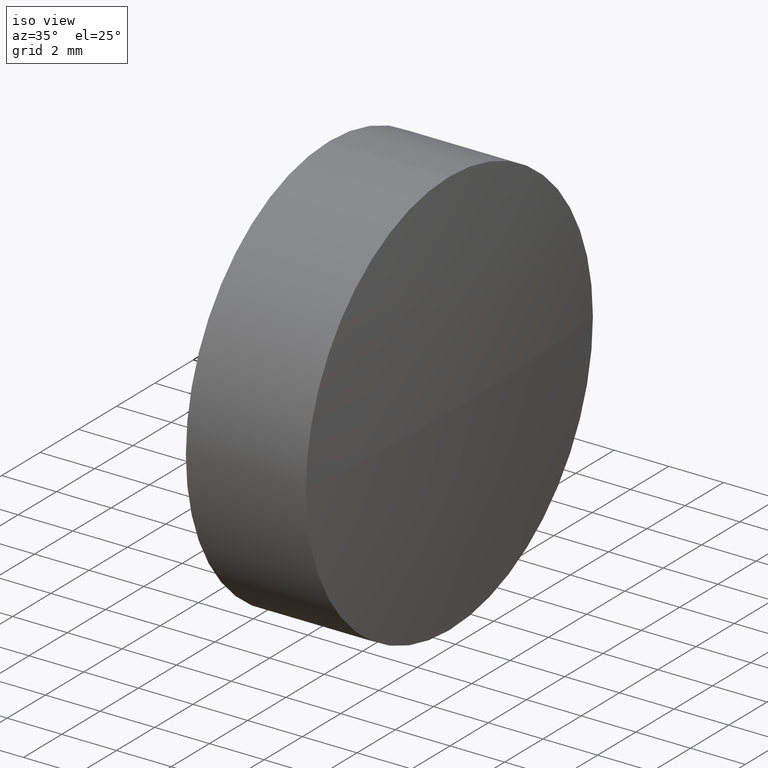
[diagram: clean part render]
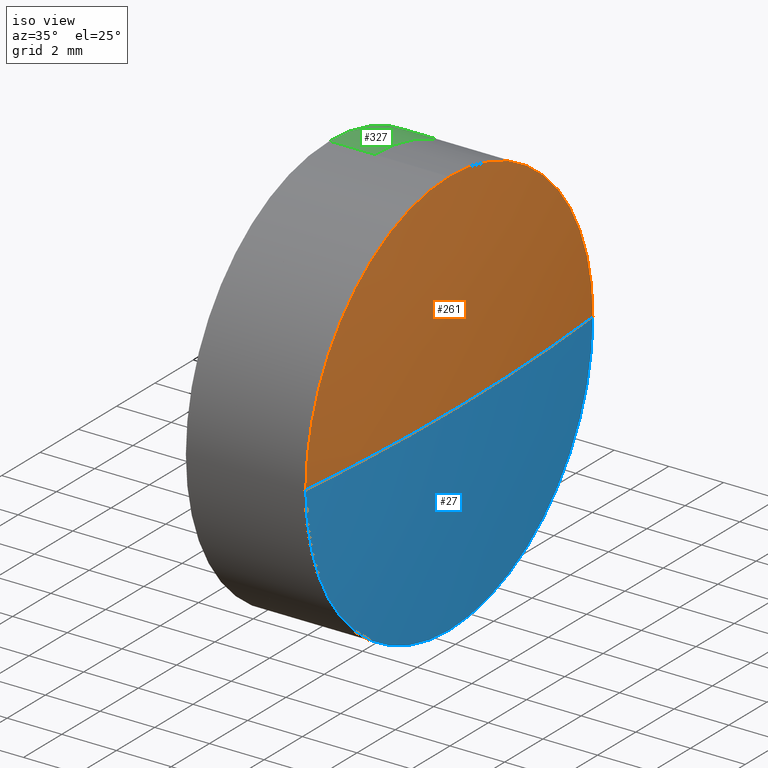
[diagram: same view with three faces highlighted in distinct colors, each labeled with its STEP entity id]
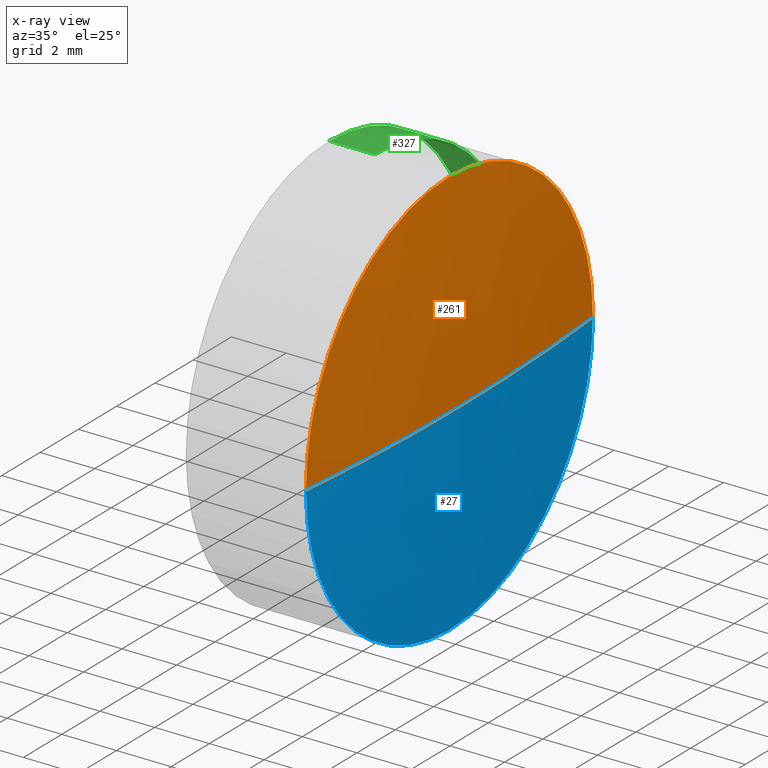
[diagram: x-ray of the same camera — body ghosted, the three highlighted faces saturated]
A machine part, iso view with three faces highlighted in distinct colors.
The next image is the same camera in x-ray (body ghosted, the three faces saturated) — at least one of them is partly hidden behind the body in this view.
Their STEP definitions:

[orange] entity #261 — the highlighted spherical surface has radius 76.36 mm.
#15 = SPHERICAL_SURFACE ( 'NONE', #78, 76.35999999999999943 ) ;
#45 = CARTESIAN_POINT ( 'NONE',  ( -84.31590303918355289, 10.13402828794794708, 7.500000000000000000 ) ) ;
#52 = EDGE_CURVE ( 'NONE', #352, #197, #414, .T. ) ;
#73 = DIRECTION ( 'NONE',  ( -1.000000000000000000, -0.000000000000000000, -0.000000000000000000 ) ) ;
#78 = AXIS2_PLACEMENT_3D ( 'NONE', #325, #395, #332 ) ;
#86 = AXIS2_PLACEMENT_3D ( 'NONE', #186, #253, #326 ) ;
#98 = EDGE_CURVE ( 'NONE', #197, #207, #232, .T. ) ;
#107 = DIRECTION ( 'NONE',  ( -0.000000000000000000, 0.000000000000000000, 1.000000000000000000 ) ) ;
#118 = VERTEX_POINT ( 'NONE', #432 ) ;
#123 = DIRECTION ( 'NONE',  ( 0.000000000000000000, 1.224646799147353207E-16, -1.000000000000000000 ) ) ;
#143 = CARTESIAN_POINT ( 'NONE',  ( -160.3066893227850755, 10.13402828794794708, 0.000000000000000000 ) ) ;
#146 = EDGE_CURVE ( 'NONE', #118, #352, #394, .T. ) ;
#181 = ORIENTED_EDGE ( 'NONE', *, *, #98, .F. ) ;
#185 = CARTESIAN_POINT ( 'NONE',  ( -84.31590303918355289, 17.63402828794788491, 0.000000000000000000 ) ) ;
#186 = CARTESIAN_POINT ( 'NONE',  ( -84.31590303918355289, 10.13402828794794708, 0.000000000000000000 ) ) ;
#197 = VERTEX_POINT ( 'NONE', #45 ) ;
#201 = AXIS2_PLACEMENT_3D ( 'NONE', #260, #123, #360 ) ;
#207 = VERTEX_POINT ( 'NONE', #185 ) ;
#217 = CIRCLE ( 'NONE', #316, 76.35999999999999943 ) ;
#232 = CIRCLE ( 'NONE', #365, 7.500000000000000000 ) ;
#253 = DIRECTION ( 'NONE',  ( -1.000000000000000000, -0.000000000000000000, -0.000000000000000000 ) ) ;
#260 = CARTESIAN_POINT ( 'NONE',  ( -160.3066893227850755, 10.13402828794794708, 0.000000000000000000 ) ) ;
#261 = ADVANCED_FACE ( 'NONE', ( #389 ), #15, .T. ) ;
#270 = ORIENTED_EDGE ( 'NONE', *, *, #359, .T. ) ;
#280 = ORIENTED_EDGE ( 'NONE', *, *, #146, .F. ) ;
#316 = AXIS2_PLACEMENT_3D ( 'NONE', #143, #107, #410 ) ;
#325 = CARTESIAN_POINT ( 'NONE',  ( -160.3066893227850755, 10.13402828794794708, 0.000000000000000000 ) ) ;
#326 = DIRECTION ( 'NONE',  ( 0.000000000000000000, 0.000000000000000000, 1.000000000000000000 ) ) ;
#332 = DIRECTION ( 'NONE',  ( 0.000000000000000000, 1.000000000000000000, 0.000000000000000000 ) ) ;
#344 = CARTESIAN_POINT ( 'NONE',  ( -84.31590303918355289, 2.634028287948008806, -9.184850993605071031E-16 ) ) ;
#352 = VERTEX_POINT ( 'NONE', #344 ) ;
#359 = EDGE_CURVE ( 'NONE', #118, #207, #217, .T. ) ;
#360 = DIRECTION ( 'NONE',  ( 0.000000000000000000, 1.000000000000000000, 1.224646799147353207E-16 ) ) ;
#365 = AXIS2_PLACEMENT_3D ( 'NONE', #383, #73, #418 ) ;
#383 = CARTESIAN_POINT ( 'NONE',  ( -84.31590303918355289, 10.13402828794794708, 0.000000000000000000 ) ) ;
#389 = FACE_OUTER_BOUND ( 'NONE', #426, .T. ) ;
#394 = CIRCLE ( 'NONE', #201, 76.35999999999999943 ) ;
#395 = DIRECTION ( 'NONE',  ( -0.000000000000000000, 0.000000000000000000, -1.000000000000000000 ) ) ;
#404 = ORIENTED_EDGE ( 'NONE', *, *, #52, .F. ) ;
#410 = DIRECTION ( 'NONE',  ( 1.000000000000000000, 0.000000000000000000, 0.000000000000000000 ) ) ;
#414 = CIRCLE ( 'NONE', #86, 7.500000000000000000 ) ;
#418 = DIRECTION ( 'NONE',  ( 0.000000000000000000, 0.000000000000000000, 1.000000000000000000 ) ) ;
#426 = EDGE_LOOP ( 'NONE', ( #280, #270, #181, #404 ) ) ;
#432 = CARTESIAN_POINT ( 'NONE',  ( -83.94668932278507611, 10.13402828794795241, 0.000000000000000000 ) ) ;

[blue] entity #27 — the highlighted spherical surface has radius 76.36 mm.
#3 = DIRECTION ( 'NONE',  ( 0.000000000000000000, 0.000000000000000000, 1.000000000000000000 ) ) ;
#17 = SPHERICAL_SURFACE ( 'NONE', #340, 76.35999999999999943 ) ;
#27 = ADVANCED_FACE ( 'NONE', ( #370 ), #17, .T. ) ;
#104 = AXIS2_PLACEMENT_3D ( 'NONE', #178, #319, #3 ) ;
#107 = DIRECTION ( 'NONE',  ( -0.000000000000000000, 0.000000000000000000, 1.000000000000000000 ) ) ;
#112 = EDGE_CURVE ( 'NONE', #131, #352, #258, .T. ) ;
#118 = VERTEX_POINT ( 'NONE', #432 ) ;
#123 = DIRECTION ( 'NONE',  ( 0.000000000000000000, 1.224646799147353207E-16, -1.000000000000000000 ) ) ;
#131 = VERTEX_POINT ( 'NONE', #202 ) ;
#142 = ORIENTED_EDGE ( 'NONE', *, *, #359, .F. ) ;
#143 = CARTESIAN_POINT ( 'NONE',  ( -160.3066893227850755, 10.13402828794794708, 0.000000000000000000 ) ) ;
#146 = EDGE_CURVE ( 'NONE', #118, #352, #394, .T. ) ;
#155 = DIRECTION ( 'NONE',  ( -1.000000000000000000, -0.000000000000000000, -0.000000000000000000 ) ) ;
#158 = DIRECTION ( 'NONE',  ( -0.000000000000000000, 0.000000000000000000, -1.000000000000000000 ) ) ;
#178 = CARTESIAN_POINT ( 'NONE',  ( -84.31590303918355289, 10.13402828794794708, 0.000000000000000000 ) ) ;
#185 = CARTESIAN_POINT ( 'NONE',  ( -84.31590303918355289, 17.63402828794788491, 0.000000000000000000 ) ) ;
#201 = AXIS2_PLACEMENT_3D ( 'NONE', #260, #123, #360 ) ;
#202 = CARTESIAN_POINT ( 'NONE',  ( -84.31590303918355289, 10.13402828794794885, -7.500000000000000000 ) ) ;
#207 = VERTEX_POINT ( 'NONE', #185 ) ;
#217 = CIRCLE ( 'NONE', #316, 76.35999999999999943 ) ;
#218 = CARTESIAN_POINT ( 'NONE',  ( -160.3066893227850755, 10.13402828794794708, 0.000000000000000000 ) ) ;
#220 = ORIENTED_EDGE ( 'NONE', *, *, #353, .F. ) ;
#241 = EDGE_LOOP ( 'NONE', ( #142, #367, #411, #220 ) ) ;
#258 = CIRCLE ( 'NONE', #354, 7.500000000000000000 ) ;
#260 = CARTESIAN_POINT ( 'NONE',  ( -160.3066893227850755, 10.13402828794794708, 0.000000000000000000 ) ) ;
#283 = DIRECTION ( 'NONE',  ( 0.000000000000000000, 1.000000000000000000, 0.000000000000000000 ) ) ;
#312 = CARTESIAN_POINT ( 'NONE',  ( -84.31590303918355289, 10.13402828794794708, 0.000000000000000000 ) ) ;
#316 = AXIS2_PLACEMENT_3D ( 'NONE', #143, #107, #410 ) ;
#319 = DIRECTION ( 'NONE',  ( -1.000000000000000000, -0.000000000000000000, -0.000000000000000000 ) ) ;
#331 = DIRECTION ( 'NONE',  ( 0.000000000000000000, 0.000000000000000000, 1.000000000000000000 ) ) ;
#340 = AXIS2_PLACEMENT_3D ( 'NONE', #218, #158, #283 ) ;
#344 = CARTESIAN_POINT ( 'NONE',  ( -84.31590303918355289, 2.634028287948008806, -9.184850993605071031E-16 ) ) ;
#352 = VERTEX_POINT ( 'NONE', #344 ) ;
#353 = EDGE_CURVE ( 'NONE', #207, #131, #445, .T. ) ;
#354 = AXIS2_PLACEMENT_3D ( 'NONE', #312, #155, #331 ) ;
#359 = EDGE_CURVE ( 'NONE', #118, #207, #217, .T. ) ;
#360 = DIRECTION ( 'NONE',  ( 0.000000000000000000, 1.000000000000000000, 1.224646799147353207E-16 ) ) ;
#367 = ORIENTED_EDGE ( 'NONE', *, *, #146, .T. ) ;
#370 = FACE_OUTER_BOUND ( 'NONE', #241, .T. ) ;
#394 = CIRCLE ( 'NONE', #201, 76.35999999999999943 ) ;
#410 = DIRECTION ( 'NONE',  ( 1.000000000000000000, 0.000000000000000000, 0.000000000000000000 ) ) ;
#411 = ORIENTED_EDGE ( 'NONE', *, *, #112, .F. ) ;
#432 = CARTESIAN_POINT ( 'NONE',  ( -83.94668932278507611, 10.13402828794795241, 0.000000000000000000 ) ) ;
#445 = CIRCLE ( 'NONE', #104, 7.500000000000000000 ) ;

[green] entity #327 — the highlighted cylindrical surface (partial cylindrical patch) has radius 7.5 mm, axis along (-1, -0, -0).
#1 = ORIENTED_EDGE ( 'NONE', *, *, #69, .T. ) ;
#13 = CARTESIAN_POINT ( 'NONE',  ( -87.04354085552412812, 17.63402828794796307, 0.000000000000000000 ) ) ;
#21 = CARTESIAN_POINT ( 'NONE',  ( -88.70484587419444722, 10.13402828794794708, 7.500000000000000000 ) ) ;
#31 = AXIS2_PLACEMENT_3D ( 'NONE', #70, #211, #277 ) ;
#47 = EDGE_CURVE ( 'NONE', #308, #301, #434, .T. ) ;
#50 = CARTESIAN_POINT ( 'NONE',  ( -87.04354085552412812, 10.13402828794794708, 0.000000000000000000 ) ) ;
#56 = VERTEX_POINT ( 'NONE', #13 ) ;
#66 = LINE ( 'NONE', #341, #209 ) ;
#68 = DIRECTION ( 'NONE',  ( -1.000000000000000000, -0.000000000000000000, -0.000000000000000000 ) ) ;
#69 = EDGE_CURVE ( 'NONE', #342, #56, #101, .T. ) ;
#70 = CARTESIAN_POINT ( 'NONE',  ( -87.04354085552412812, 10.13402828794794708, 0.000000000000000000 ) ) ;
#82 = EDGE_CURVE ( 'NONE', #342, #113, #240, .T. ) ;
#101 = CIRCLE ( 'NONE', #31, 7.500000000000000000 ) ;
#110 = CARTESIAN_POINT ( 'NONE',  ( -89.46810897602928492, 10.13402828794794708, 7.500000000000000000 ) ) ;
#113 = VERTEX_POINT ( 'NONE', #21 ) ;
#120 = CARTESIAN_POINT ( 'NONE',  ( -87.04354085552412812, 10.13402828794794885, -7.500000000000000000 ) ) ;
#124 = CARTESIAN_POINT ( 'NONE',  ( -88.70484587419444722, 10.13402828794794708, 0.000000000000000000 ) ) ;
#139 = FACE_OUTER_BOUND ( 'NONE', #320, .T. ) ;
#144 = VECTOR ( 'NONE', #173, 1000.000000000000000 ) ;
#151 = DIRECTION ( 'NONE',  ( -1.000000000000000000, -0.000000000000000000, -0.000000000000000000 ) ) ;
#164 = ORIENTED_EDGE ( 'NONE', *, *, #82, .F. ) ;
#169 = ORIENTED_EDGE ( 'NONE', *, *, #371, .F. ) ;
#173 = DIRECTION ( 'NONE',  ( -1.000000000000000000, -0.000000000000000000, -0.000000000000000000 ) ) ;
#196 = EDGE_CURVE ( 'NONE', #56, #282, #215, .T. ) ;
#200 = DIRECTION ( 'NONE',  ( 0.000000000000000000, 0.000000000000000000, 1.000000000000000000 ) ) ;
#205 = CARTESIAN_POINT ( 'NONE',  ( -88.70484587419444722, 17.63402828794797017, 0.000000000000000000 ) ) ;
#209 = VECTOR ( 'NONE', #68, 1000.000000000000000 ) ;
#211 = DIRECTION ( 'NONE',  ( -1.000000000000000000, -0.000000000000000000, -0.000000000000000000 ) ) ;
#215 = CIRCLE ( 'NONE', #246, 7.500000000000000000 ) ;
#221 = DIRECTION ( 'NONE',  ( 0.000000000000000000, 0.000000000000000000, 1.000000000000000000 ) ) ;
#230 = ORIENTED_EDGE ( 'NONE', *, *, #196, .T. ) ;
#234 = CIRCLE ( 'NONE', #299, 7.500000000000000000 ) ;
#236 = CARTESIAN_POINT ( 'NONE',  ( -87.04354085552412812, 10.13402828794794708, 7.500000000000000000 ) ) ;
#240 = LINE ( 'NONE', #110, #144 ) ;
#242 = AXIS2_PLACEMENT_3D ( 'NONE', #442, #447, #200 ) ;
#246 = AXIS2_PLACEMENT_3D ( 'NONE', #50, #361, #221 ) ;
#265 = DIRECTION ( 'NONE',  ( -1.000000000000000000, -0.000000000000000000, -0.000000000000000000 ) ) ;
#268 = CARTESIAN_POINT ( 'NONE',  ( -88.70484587419444722, 10.13402828794794885, -7.500000000000000000 ) ) ;
#277 = DIRECTION ( 'NONE',  ( 0.000000000000000000, 0.000000000000000000, 1.000000000000000000 ) ) ;
#282 = VERTEX_POINT ( 'NONE', #120 ) ;
#285 = DIRECTION ( 'NONE',  ( 0.000000000000000000, 0.000000000000000000, 1.000000000000000000 ) ) ;
#286 = DIRECTION ( 'NONE',  ( 0.000000000000000000, 0.000000000000000000, 1.000000000000000000 ) ) ;
#299 = AXIS2_PLACEMENT_3D ( 'NONE', #310, #265, #285 ) ;
#301 = VERTEX_POINT ( 'NONE', #268 ) ;
#308 = VERTEX_POINT ( 'NONE', #205 ) ;
#310 = CARTESIAN_POINT ( 'NONE',  ( -88.70484587419444722, 10.13402828794794708, 0.000000000000000000 ) ) ;
#320 = EDGE_LOOP ( 'NONE', ( #230, #385, #323, #169, #164, #1 ) ) ;
#323 = ORIENTED_EDGE ( 'NONE', *, *, #47, .F. ) ;
#327 = ADVANCED_FACE ( 'NONE', ( #139 ), #346, .T. ) ;
#339 = EDGE_CURVE ( 'NONE', #282, #301, #66, .T. ) ;
#341 = CARTESIAN_POINT ( 'NONE',  ( -89.46810897602928492, 10.13402828794794885, -7.500000000000000000 ) ) ;
#342 = VERTEX_POINT ( 'NONE', #236 ) ;
#346 = CYLINDRICAL_SURFACE ( 'NONE', #242, 7.500000000000000000 ) ;
#361 = DIRECTION ( 'NONE',  ( -1.000000000000000000, -0.000000000000000000, -0.000000000000000000 ) ) ;
#371 = EDGE_CURVE ( 'NONE', #113, #308, #234, .T. ) ;
#375 = AXIS2_PLACEMENT_3D ( 'NONE', #124, #151, #286 ) ;
#385 = ORIENTED_EDGE ( 'NONE', *, *, #339, .T. ) ;
#434 = CIRCLE ( 'NONE', #375, 7.500000000000000000 ) ;
#442 = CARTESIAN_POINT ( 'NONE',  ( -89.46810897602928492, 10.13402828794794708, 0.000000000000000000 ) ) ;
#447 = DIRECTION ( 'NONE',  ( -1.000000000000000000, -0.000000000000000000, -0.000000000000000000 ) ) ;